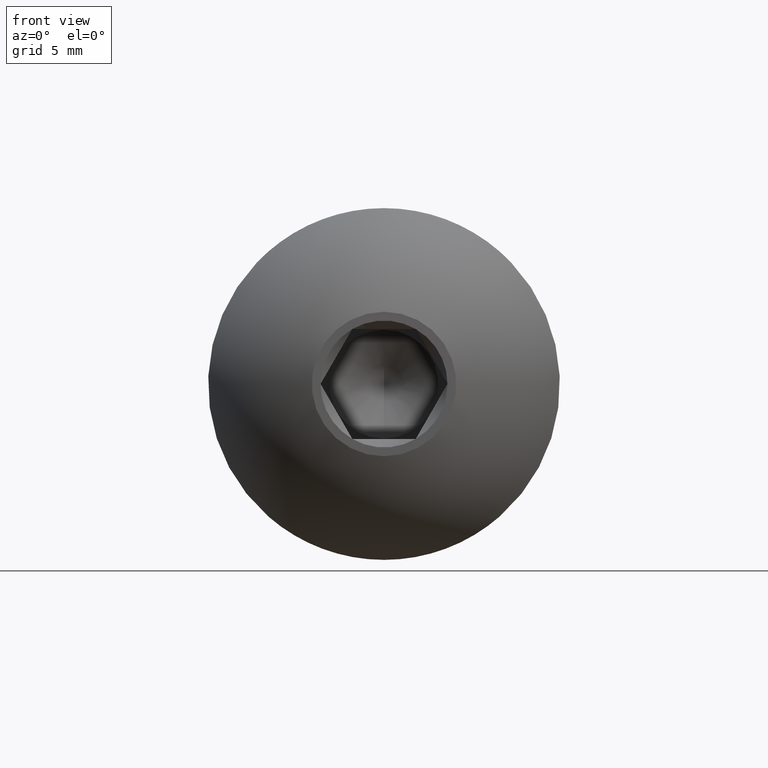
[diagram: clean part render]
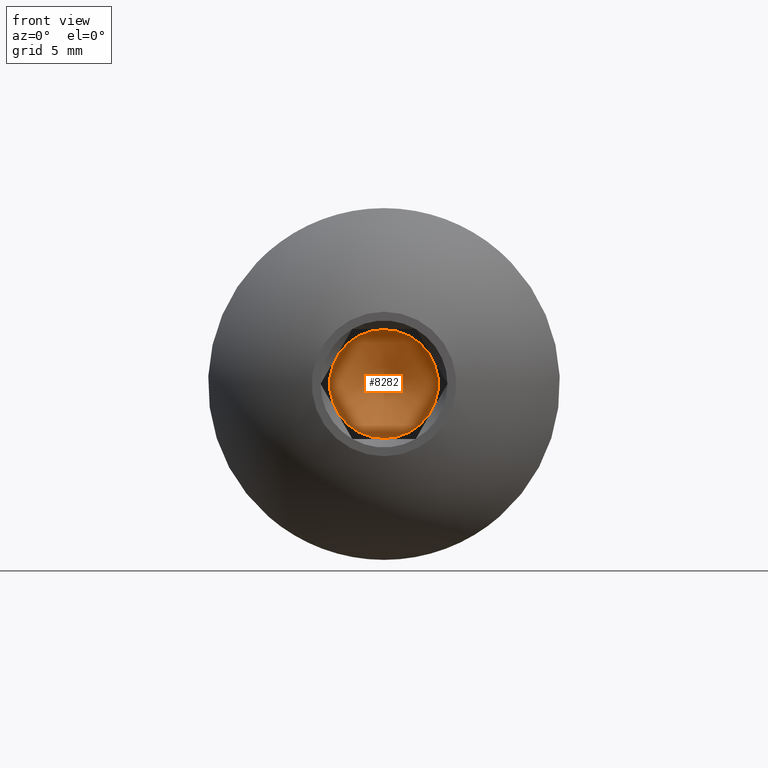
[diagram: same view with one face highlighted and labeled with its STEP entity id]
A machine part, front view. The second image highlights one B-rep face of the part: STEP entity #8282.
In plain terms, the highlighted conical surface has half-angle 59 deg.
Its self-contained STEP definition (entity closure, byte-faithful):
#2066 = CIRCLE ( 'NONE', #5081, 2.474999999999999645 ) ;
#3067 = EDGE_CURVE ( 'NONE', #6500, #6500, #2066, .T. ) ;
#4874 = CONICAL_SURFACE ( 'NONE', #10455, 2.474999999999999645, 1.029744258676657420 ) ;
#5081 = AXIS2_PLACEMENT_3D ( 'NONE', #7676, #10098, #12382 ) ;
#5819 = EDGE_LOOP ( 'NONE', ( #14402 ) ) ;
#6500 = VERTEX_POINT ( 'NONE', #8852 ) ;
#7676 = CARTESIAN_POINT ( 'NONE',  ( 0.000000000000000000, 2.750000000000000000, 0.000000000000000000 ) ) ;
#8231 = CARTESIAN_POINT ( 'NONE',  ( 0.000000000000000000, 2.750000000000000000, 0.000000000000000000 ) ) ;
#8282 = ADVANCED_FACE ( 'NONE', ( #10343 ), #4874, .F. ) ;
#8852 = CARTESIAN_POINT ( 'NONE',  ( 0.000000000000000000, 2.750000000000000000, -2.474999999999999645 ) ) ;
#10098 = DIRECTION ( 'NONE',  ( -0.000000000000000000, 1.000000000000000000, -0.000000000000000000 ) ) ;
#10343 = FACE_OUTER_BOUND ( 'NONE', #5819, .T. ) ;
#10455 = AXIS2_PLACEMENT_3D ( 'NONE', #8231, #13155, #13000 ) ;
#12382 = DIRECTION ( 'NONE',  ( 0.000000000000000000, 0.000000000000000000, -1.000000000000000000 ) ) ;
#13000 = DIRECTION ( 'NONE',  ( 0.000000000000000000, 0.000000000000000000, -1.000000000000000000 ) ) ;
#13155 = DIRECTION ( 'NONE',  ( -0.000000000000000000, -1.000000000000000000, -0.000000000000000000 ) ) ;
#14402 = ORIENTED_EDGE ( 'NONE', *, *, #3067, .F. ) ;